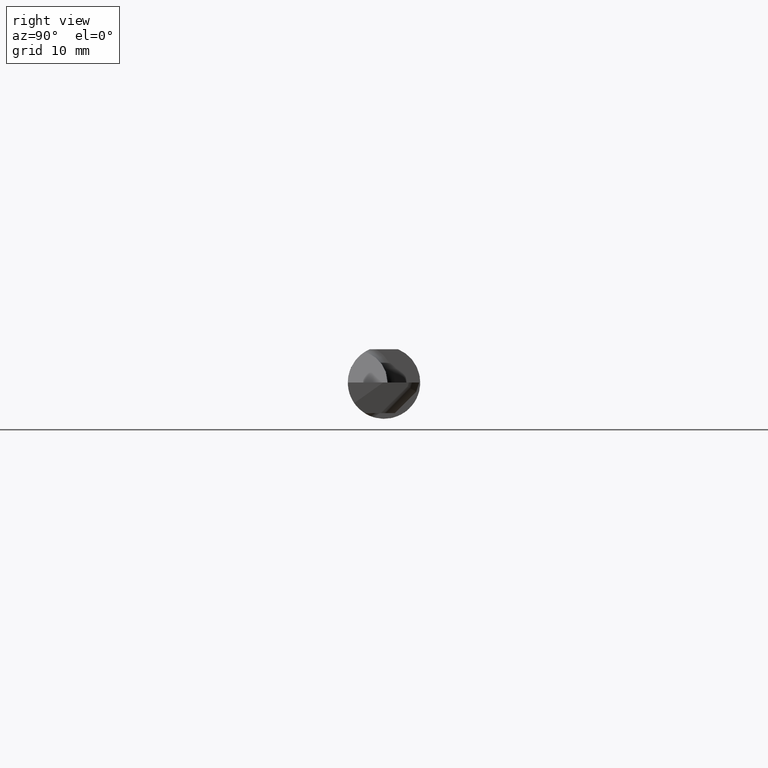
[diagram: clean part render]
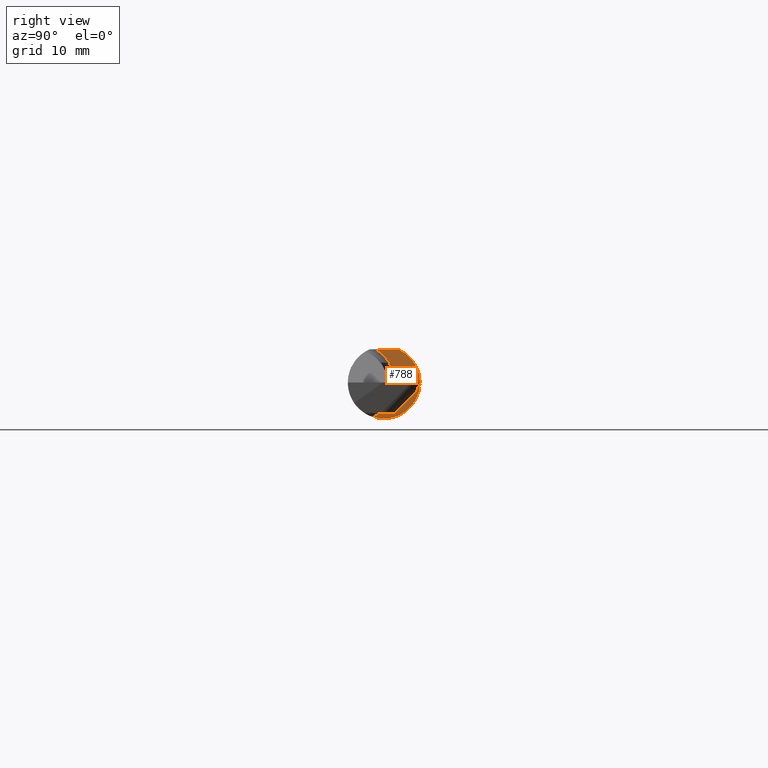
[diagram: same view with one face highlighted and labeled with its STEP entity id]
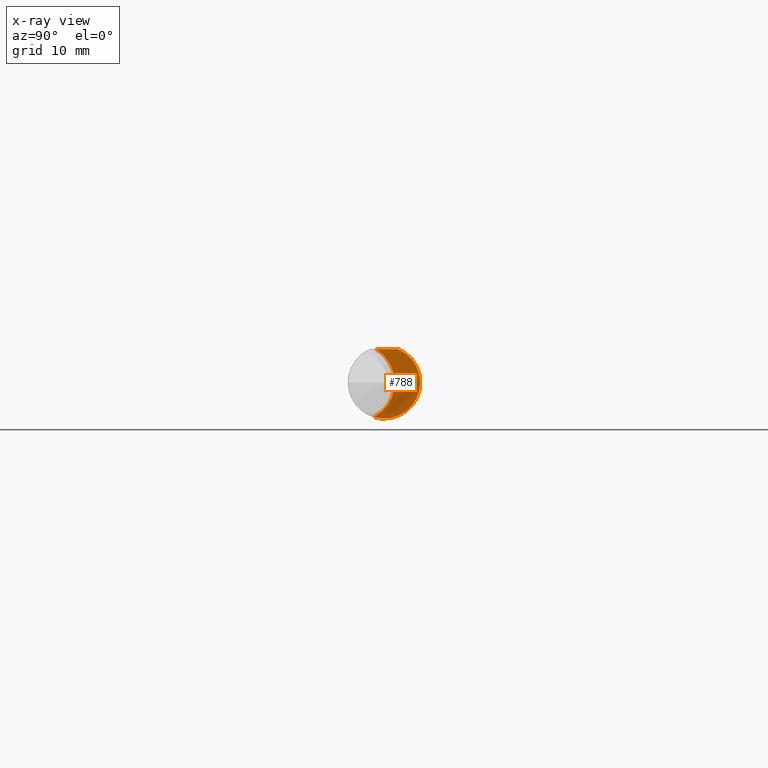
[diagram: x-ray of the same camera — body ghosted, the highlighted face saturated]
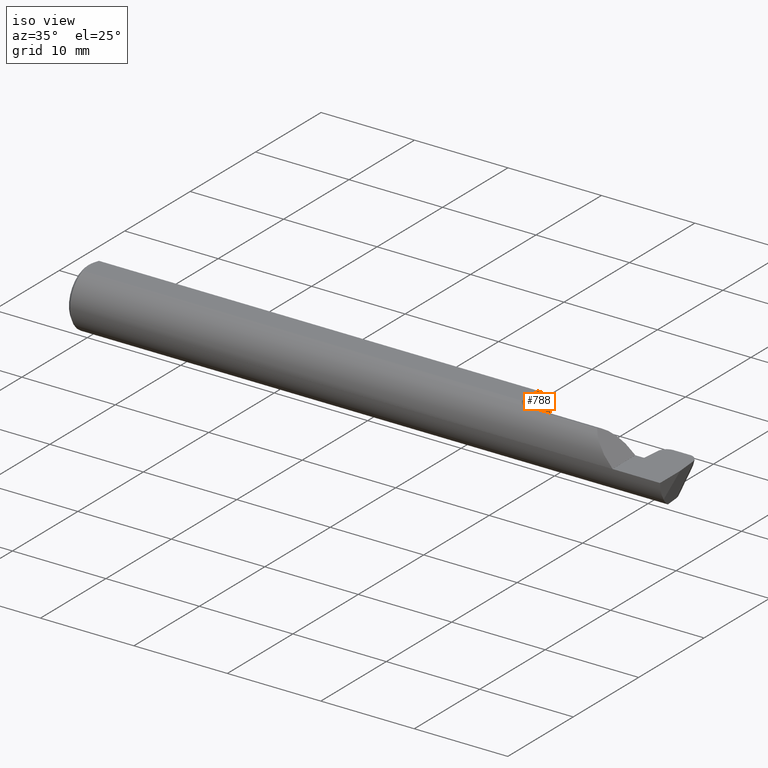
[diagram: same view with one face highlighted and labeled with its STEP entity id]
A machine part, right view. The second image highlights one B-rep face of the part: STEP entity #788.
The next image is the same camera in x-ray: the body ghosted, the highlighted face saturated — about 34% of this face is hidden behind the body in this view.
A second angle (iso view) of the same face is appended — the face is thin or edge-on in the first view.
In plain terms, the highlighted planar face has unit normal (1, 0, 0).
Its self-contained STEP definition (entity closure, byte-faithful):
#67 = VECTOR ( 'NONE', #699, 39.37007874015748143 ) ;
#102 = ORIENTED_EDGE ( 'NONE', *, *, #656, .T. ) ;
#120 = VERTEX_POINT ( 'NONE', #707 ) ;
#139 = EDGE_CURVE ( 'NONE', #120, #756, #858, .T. ) ;
#192 = AXIS2_PLACEMENT_3D ( 'NONE', #255, #514, #451 ) ;
#220 = CARTESIAN_POINT ( 'NONE',  ( 1.864000000000000101, -0.09784999999999999254, 0.000000000000000000 ) ) ;
#255 = CARTESIAN_POINT ( 'NONE',  ( 1.864000000000000101, 0.2121500000000000608, 0.000000000000000000 ) ) ;
#274 = CARTESIAN_POINT ( 'NONE',  ( 1.864000000000000101, -0.02689594796630704471, 0.1148500000000000076 ) ) ;
#306 = CARTESIAN_POINT ( 'NONE',  ( 1.864000000000000101, 0.000000000000000000, 0.000000000000000000 ) ) ;
#307 = ORIENTED_EDGE ( 'NONE', *, *, #139, .T. ) ;
#374 = ORIENTED_EDGE ( 'NONE', *, *, #481, .T. ) ;
#398 = AXIS2_PLACEMENT_3D ( 'NONE', #220, #689, #475 ) ;
#443 = PLANE ( 'NONE',  #192 ) ;
#451 = DIRECTION ( 'NONE',  ( 0.000000000000000000, 0.000000000000000000, -1.000000000000000000 ) ) ;
#475 = DIRECTION ( 'NONE',  ( 0.000000000000000000, 0.000000000000000000, -1.000000000000000000 ) ) ;
#477 = EDGE_LOOP ( 'NONE', ( #102, #374, #307 ) ) ;
#481 = EDGE_CURVE ( 'NONE', #495, #120, #642, .T. ) ;
#493 = CARTESIAN_POINT ( 'NONE',  ( 1.864000000000000101, 0.1000000000000000056, 0.1148500000000000076 ) ) ;
#495 = VERTEX_POINT ( 'NONE', #274 ) ;
#514 = DIRECTION ( 'NONE',  ( 1.000000000000000000, 0.000000000000000000, 0.000000000000000000 ) ) ;
#593 = CARTESIAN_POINT ( 'NONE',  ( 1.864000000000000101, 0.04895916665957456698, 0.1148500000000000076 ) ) ;
#594 = DIRECTION ( 'NONE',  ( 1.000000000000000000, 0.000000000000000000, 0.000000000000000000 ) ) ;
#642 = CIRCLE ( 'NONE', #398, 0.1350000000000000366 ) ;
#653 = AXIS2_PLACEMENT_3D ( 'NONE', #306, #594, #715 ) ;
#656 = EDGE_CURVE ( 'NONE', #756, #495, #764, .T. ) ;
#689 = DIRECTION ( 'NONE',  ( -1.000000000000000000, -0.000000000000000000, -0.000000000000000000 ) ) ;
#699 = DIRECTION ( 'NONE',  ( 0.000000000000000000, -1.000000000000000000, 0.000000000000000000 ) ) ;
#707 = CARTESIAN_POINT ( 'NONE',  ( 1.864000000000000101, -0.03544785385794579219, -0.1197120384792846048 ) ) ;
#715 = DIRECTION ( 'NONE',  ( 0.000000000000000000, 0.000000000000000000, -1.000000000000000000 ) ) ;
#756 = VERTEX_POINT ( 'NONE', #593 ) ;
#764 = LINE ( 'NONE', #493, #67 ) ;
#788 = ADVANCED_FACE ( 'NONE', ( #854 ), #443, .T. ) ;
#854 = FACE_OUTER_BOUND ( 'NONE', #477, .T. ) ;
#858 = CIRCLE ( 'NONE', #653, 0.1248500000000000026 ) ;